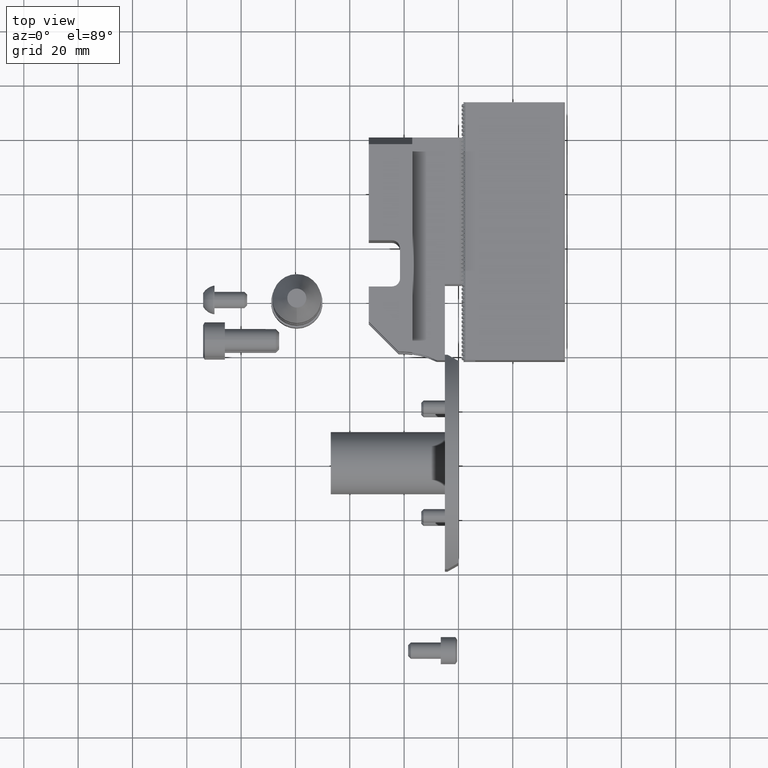
[diagram: clean part render]
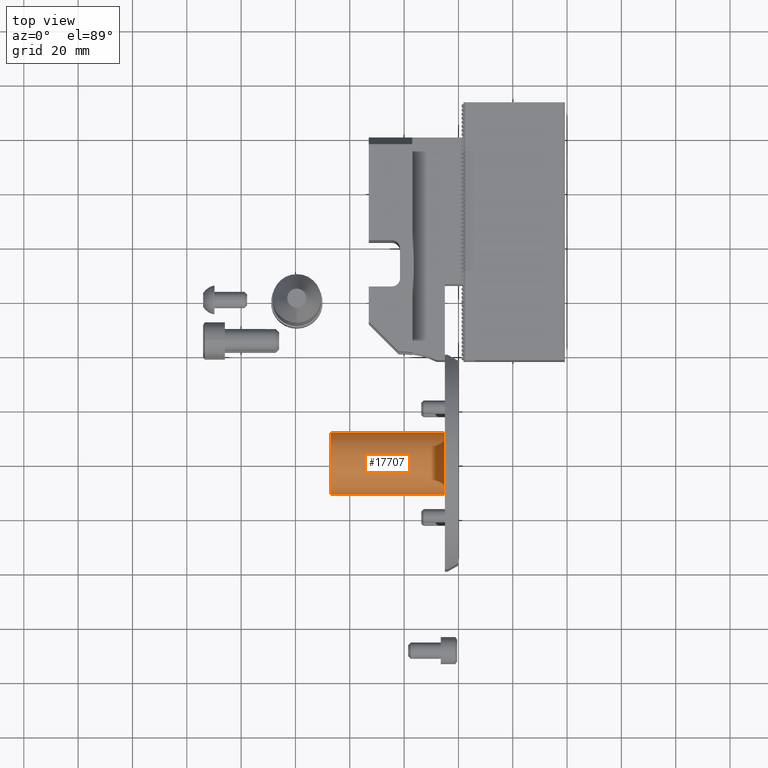
[diagram: same view with one face highlighted and labeled with its STEP entity id]
A machine part, top view. The second image highlights one B-rep face of the part: STEP entity #17707.
In plain terms, the highlighted cylindrical surface (bore or boss wall) has radius 11.5 mm, axis along (-1, 0, 0).
Its self-contained STEP definition (entity closure, byte-faithful):
#75=CYLINDRICAL_SURFACE('',#18973,11.5);
#8687=ORIENTED_EDGE('',*,*,#12049,.F.);
#8688=ORIENTED_EDGE('',*,*,#12052,.T.);
#12049=EDGE_CURVE('',#14010,#14010,#14756,.T.);
#12052=EDGE_CURVE('',#14013,#14013,#14759,.T.);
#14010=VERTEX_POINT('',#27325);
#14013=VERTEX_POINT('',#27336);
#14756=CIRCLE('',#18966,11.5);
#14759=CIRCLE('',#18974,11.5);
#15562=EDGE_LOOP('',(#8687));
#15563=EDGE_LOOP('',(#8688));
#16667=FACE_BOUND('',#15562,.T.);
#16668=FACE_BOUND('',#15563,.T.);
#17707=ADVANCED_FACE('',(#16667,#16668),#75,.T.);
#18966=AXIS2_PLACEMENT_3D('',#27324,#22396,#22397);
#18973=AXIS2_PLACEMENT_3D('',#27334,#22410,#22411);
#18974=AXIS2_PLACEMENT_3D('',#27335,#22412,#22413);
#22396=DIRECTION('',(1.,0.,0.));
#22397=DIRECTION('',(0.,0.,-1.));
#22410=DIRECTION('',(-1.,0.,0.));
#22411=DIRECTION('',(0.,0.,-1.));
#22412=DIRECTION('',(1.,0.,0.));
#22413=DIRECTION('',(0.,0.,-1.));
#27324=CARTESIAN_POINT('',(-5.,0.,0.));
#27325=CARTESIAN_POINT('',(-5.,0.,-11.5));
#27334=CARTESIAN_POINT('',(4.81027027027028,0.,0.));
#27335=CARTESIAN_POINT('',(-47.,0.,0.));
#27336=CARTESIAN_POINT('',(-47.,0.,-11.5));